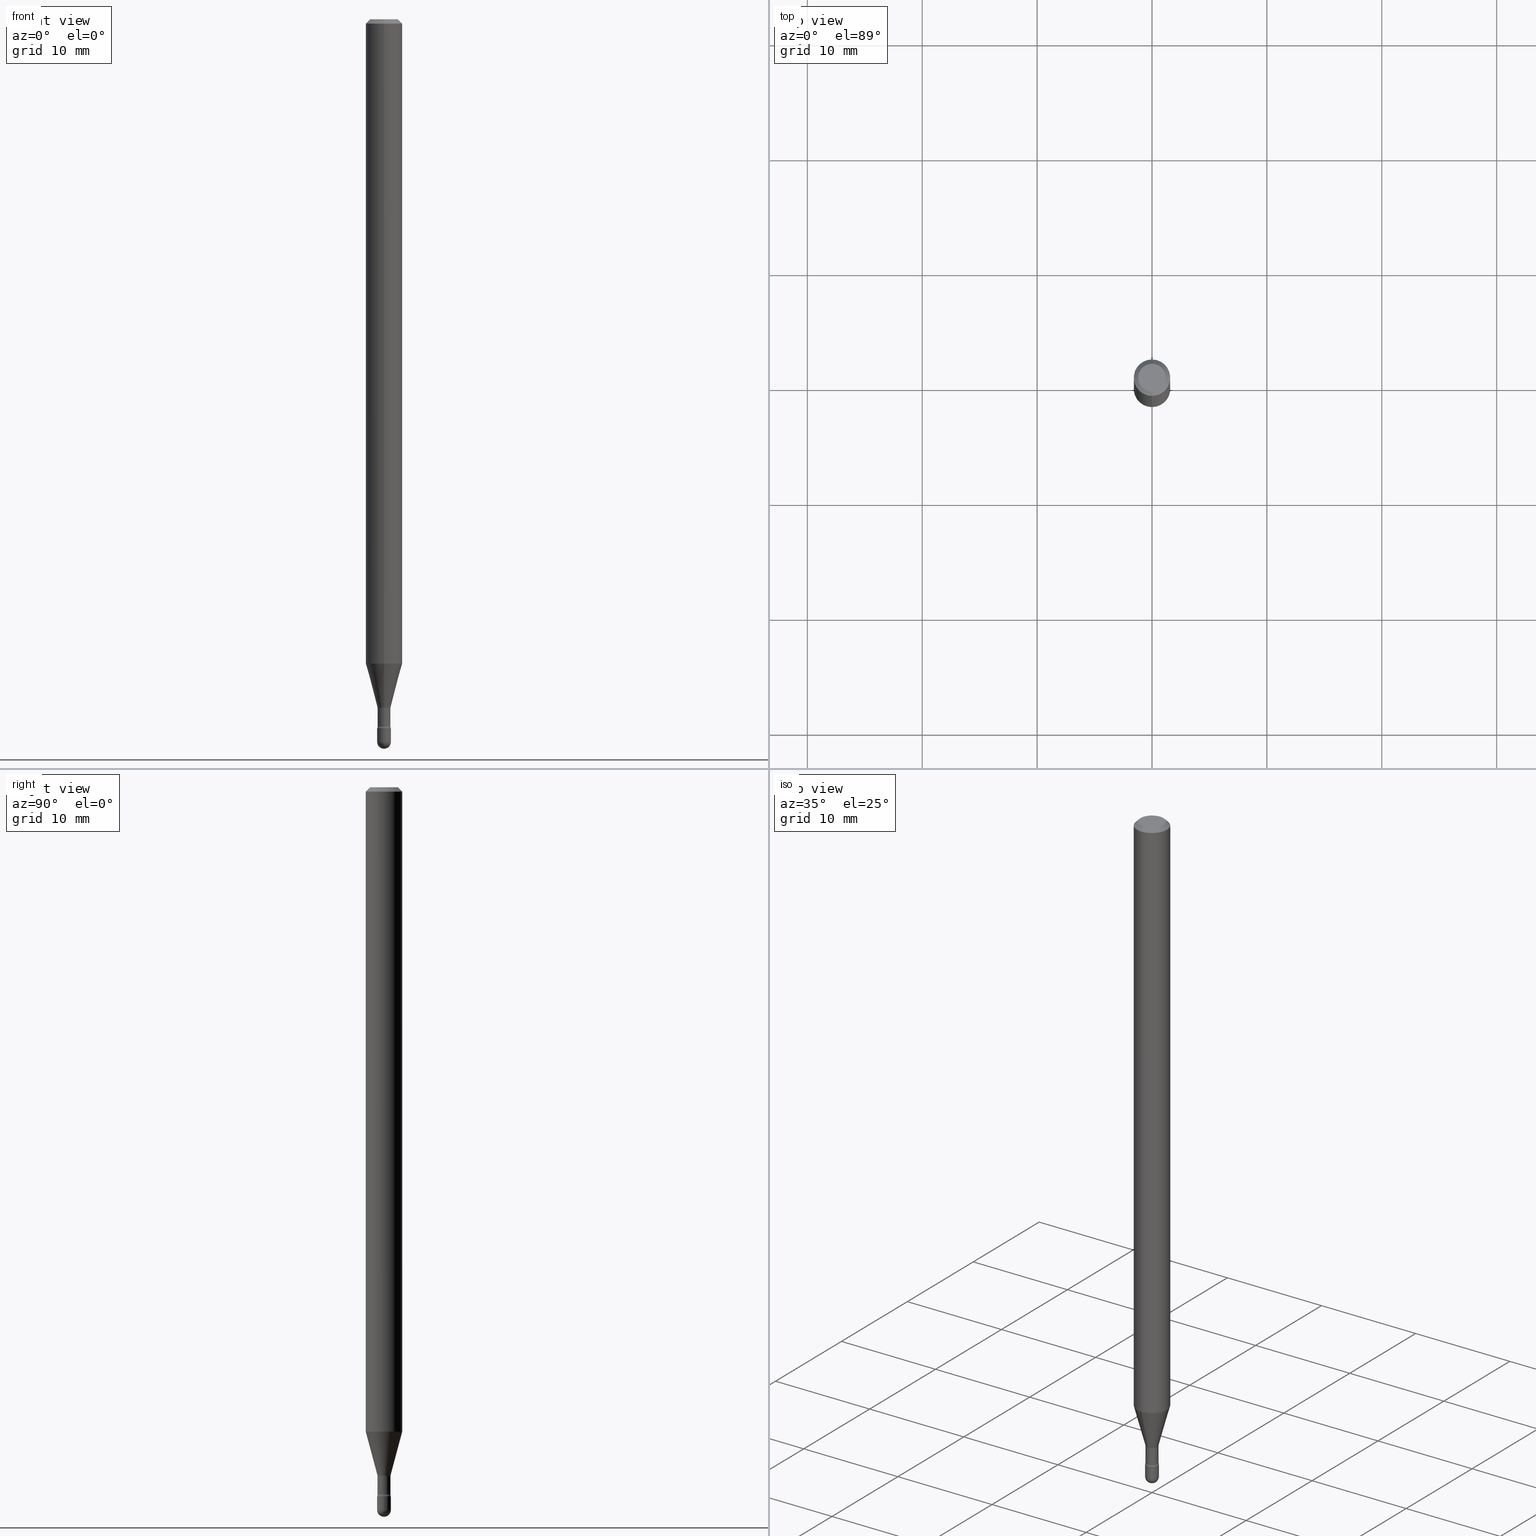
[diagram: canonical four-view strip — front | top / right | iso, engineering-drawing reading convention]
A machine part, canonical four-view strip (front | top / right | iso — engineering-drawing reading convention). The complete STEP part file that produces these views, byte-faithful:
ISO-10303-21;
HEADER;
FILE_DESCRIPTION (( 'STEP AP203' ),
    '1' );
FILE_NAME ('03814.STEP',
    '2024-04-09T20:34:34',
    ( '' ),
    ( '' ),
    'SwSTEP 2.0',
    'SolidWorks 2023',
    '' );
FILE_SCHEMA (( 'CONFIG_CONTROL_DESIGN' ));
ENDSEC;

DATA;
#1 = CARTESIAN_POINT ( 'NONE',  ( 3.668188384144842719E-31, -5.237243238698828652E-17, -0.01500000000000008271 ) ) ;
#2 = ORIENTED_EDGE ( 'NONE', *, *, #252, .F. ) ;
#3 = ORIENTED_EDGE ( 'NONE', *, *, #169, .T. ) ;
#4 = DIRECTION ( 'NONE',  ( -2.445458922763215307E-29, 3.491495492465866441E-15, 1.000000000000000000 ) ) ;
#5 = CIRCLE ( 'NONE', #216, 0.06250000000000000000 ) ;
#6 = EDGE_LOOP ( 'NONE', ( #541, #23, #12, #140 ) ) ;
#7 = CIRCLE ( 'NONE', #28, 0.02210000000000000159 ) ;
#8 = LINE ( 'NONE', #402, #455 ) ;
#9 = DIRECTION ( 'NONE',  ( 1.000000000000000000, -6.982962677686227268E-15, 0.000000000000000000 ) ) ;
#10 = LINE ( 'NONE', #356, #283 ) ;
#11 = DIRECTION ( 'NONE',  ( 2.445458922763215307E-29, -3.491495492465866441E-15, -1.000000000000000000 ) ) ;
#12 = ORIENTED_EDGE ( 'NONE', *, *, #491, .F. ) ;
#13 = CARTESIAN_POINT ( 'NONE',  ( 5.400123890116396966E-29, -7.710008148406855528E-15, -2.208225147374217823 ) ) ;
#14 = DIRECTION ( 'NONE',  ( -6.982962677686265922E-15, -1.000000000000000000, 0.000000000000000000 ) ) ;
#15 = ORIENTED_EDGE ( 'NONE', *, *, #129, .T. ) ;
#16 = EDGE_CURVE ( 'NONE', #460, #523, #559, .T. ) ;
#17 = PLANE ( 'NONE',  #522 ) ;
#18 = VECTOR ( 'NONE', #365, 39.37007874015748143 ) ;
#19 = FACE_OUTER_BOUND ( 'NONE', #482, .T. ) ;
#20 = ORIENTED_EDGE ( 'NONE', *, *, #16, .F. ) ;
#21 = EDGE_LOOP ( 'NONE', ( #24, #143, #464, #63 ) ) ;
#22 = DIRECTION ( 'NONE',  ( -2.445468806185136877E-29, 3.491481338843145188E-15, 1.000000000000000000 ) ) ;
#23 = ORIENTED_EDGE ( 'NONE', *, *, #141, .T. ) ;
#24 = ORIENTED_EDGE ( 'NONE', *, *, #322, .F. ) ;
#25 = PLANE ( 'NONE',  #121 ) ;
#26 = CARTESIAN_POINT ( 'NONE',  ( -1.543234751768087274E-16, -0.02210000000000824499, -2.360974787463811175 ) ) ;
#27 = VERTEX_POINT ( 'NONE', #191 ) ;
#28 = AXIS2_PLACEMENT_3D ( 'NONE', #325, #328, #274 ) ;
#29 = VERTEX_POINT ( 'NONE', #152 ) ;
#30 = CIRCLE ( 'NONE', #342, 0.02349999999999995148 ) ;
#31 = AXIS2_PLACEMENT_3D ( 'NONE', #411, #187, #109 ) ;
#32 = MANIFOLD_SOLID_BREP ( 'Body-Move/Copy2[2]', #535 ) ;
#33 = PERSON_AND_ORGANIZATION_ROLE ( 'design_owner' ) ;
#34 = ORIENTED_EDGE ( 'NONE', *, *, #141, .F. ) ;
#35 = DIRECTION ( 'NONE',  ( -7.105427357601001070E-15, -1.000000000000000000, 0.000000000000000000 ) ) ;
#36 = CALENDAR_DATE ( 2024, 9, 4 ) ;
#37 = DIRECTION ( 'NONE',  ( -2.445458922763215307E-29, 3.491495492465866441E-15, 1.000000000000000000 ) ) ;
#38 = EDGE_LOOP ( 'NONE', ( #458, #389, #506, #377, #231 ) ) ;
#39 = EDGE_CURVE ( 'NONE', #368, #417, #521, .T. ) ;
#40 = CALENDAR_DATE ( 2024, 9, 4 ) ;
#41 = AXIS2_PLACEMENT_3D ( 'NONE', #208, #51, #437 ) ;
#42 = DATE_AND_TIME ( #36, #330 ) ;
#43 = PRODUCT_DEFINITION_SHAPE ( 'NONE', 'NONE',  #384 ) ;
#44 = VECTOR ( 'NONE', #415, 39.37007874015748143 ) ;
#45 = COORDINATED_UNIVERSAL_TIME_OFFSET ( 5, 0, .BEHIND. ) ;
#46 = PRODUCT_RELATED_PRODUCT_CATEGORY ( 'detail', '', ( #202 ) ) ;
#47 = EDGE_CURVE ( 'NONE', #110, #195, #242, .T. ) ;
#48 = EDGE_CURVE ( 'NONE', #405, #503, #5, .T. ) ;
#49 = FACE_OUTER_BOUND ( 'NONE', #185, .T. ) ;
#50 = CIRCLE ( 'NONE', #218, 0.02350000000000000352 ) ;
#51 = DIRECTION ( 'NONE',  ( -2.445458922763215307E-29, 3.491495492465866441E-15, 1.000000000000000000 ) ) ;
#52 = ORIENTED_EDGE ( 'NONE', *, *, #48, .F. ) ;
#53 = ORIENTED_EDGE ( 'NONE', *, *, #226, .T. ) ;
#54 = DIRECTION ( 'NONE',  ( -2.445468806185136597E-29, 3.491481338843145583E-15, 1.000000000000000000 ) ) ;
#55 = DIRECTION ( 'NONE',  ( -2.445458922763215307E-29, 3.491495492465866441E-15, 1.000000000000000000 ) ) ;
#56 = CARTESIAN_POINT ( 'NONE',  ( -1.169113584055446105E-44, 1.669184350826100908E-30, 4.780733988912460139E-16 ) ) ;
#57 = LINE ( 'NONE', #96, #18 ) ;
#58 = EDGE_CURVE ( 'NONE', #188, #414, #547, .T. ) ;
#59 = EDGE_LOOP ( 'NONE', ( #128, #367 ) ) ;
#60 = EDGE_CURVE ( 'NONE', #414, #188, #372, .T. ) ;
#61 = DIRECTION ( 'NONE',  ( -2.445458922763215307E-29, 3.491495492465866441E-15, 1.000000000000000000 ) ) ;
#62 = LINE ( 'NONE', #313, #201 ) ;
#63 = ORIENTED_EDGE ( 'NONE', *, *, #518, .F. ) ;
#64 = AXIS2_PLACEMENT_3D ( 'NONE', #361, #442, #138 ) ;
#65 = CARTESIAN_POINT ( 'NONE',  ( 1.640996229256876491E-16, 0.02349999999999132991, -2.476500000000000590 ) ) ;
#66 = CIRCLE ( 'NONE', #203, 0.01500000000000002373 ) ;
#67 = CARTESIAN_POINT ( 'NONE',  ( -0.02350000000000000352, 1.669775429036235687E-16, -1.155949746209903035E-30 ) ) ;
#68 = EDGE_LOOP ( 'NONE', ( #327, #194, #370, #153 ) ) ;
#69 = ADVANCED_FACE ( 'NONE', ( #340 ), #299, .T. ) ;
#70 = FACE_OUTER_BOUND ( 'NONE', #145, .T. ) ;
#71 = DIRECTION ( 'NONE',  ( 7.105427357600997914E-15, 1.000000000000000000, 0.000000000000000000 ) ) ;
#72 = DIRECTION ( 'NONE',  ( 2.445458922763215307E-29, -3.491495492465866047E-15, -1.000000000000000000 ) ) ;
#73 = EDGE_LOOP ( 'NONE', ( #278, #112, #409, #479 ) ) ;
#74 = FACE_OUTER_BOUND ( 'NONE', #38, .T. ) ;
#75 = AXIS2_PLACEMENT_3D ( 'NONE', #117, #82, #162 ) ;
#76 = COORDINATED_UNIVERSAL_TIME_OFFSET ( 5, 0, .BEHIND. ) ;
#77 = DIRECTION ( 'NONE',  ( -6.982962677686266711E-15, -1.000000000000000000, 3.491495492465867230E-15 ) ) ;
#78 = DIRECTION ( 'NONE',  ( 1.000000000000000000, -6.982962677686265922E-15, 4.876176775795935793E-29 ) ) ;
#79 = ADVANCED_FACE ( 'NONE', ( #429 ), #564, .F. ) ;
#80 = VECTOR ( 'NONE', #528, 39.37007874015748143 ) ;
#81 = PERSON_AND_ORGANIZATION_ROLE ( 'creator' ) ;
#82 = DIRECTION ( 'NONE',  ( -2.445458922763215307E-29, 3.491495492465866441E-15, 1.000000000000000000 ) ) ;
#83 = AXIS2_PLACEMENT_3D ( 'NONE', #440, #351, #84 ) ;
#84 = DIRECTION ( 'NONE',  ( -6.982962677686265922E-15, -1.000000000000000000, 3.491495492465867230E-15 ) ) ;
#85 = EDGE_LOOP ( 'NONE', ( #438, #183, #148, #264 ) ) ;
#86 = ADVANCED_FACE ( 'NONE', ( #509 ), #122, .T. ) ;
#87 = ORIENTED_EDGE ( 'NONE', *, *, #175, .F. ) ;
#88 = ORIENTED_EDGE ( 'NONE', *, *, #494, .F. ) ;
#89 = FACE_OUTER_BOUND ( 'NONE', #6, .T. ) ;
#90 = FACE_OUTER_BOUND ( 'NONE', #498, .T. ) ;
#91 = EDGE_CURVE ( 'NONE', #413, #165, #156, .T. ) ;
#92 = CARTESIAN_POINT ( 'NONE',  ( 6.056203498517492154E-29, -8.646653535645053486E-15, -2.476500000000000590 ) ) ;
#93 = FACE_OUTER_BOUND ( 'NONE', #59, .T. ) ;
#94 = CARTESIAN_POINT ( 'NONE',  ( 6.056203498517492154E-29, -8.646653535645053486E-15, -2.476500000000000590 ) ) ;
#95 = VERTEX_POINT ( 'NONE', #259 ) ;
#96 = CARTESIAN_POINT ( 'NONE',  ( 1.606616180941393285E-16, 0.02261111260565575043, -2.357092501787273253 ) ) ;
#97 = CARTESIAN_POINT ( 'NONE',  ( -1.543234751768071250E-16, -0.02210000000000844275, -2.422672283192177645 ) ) ;
#98 = ORIENTED_EDGE ( 'NONE', *, *, #426, .F. ) ;
#99 = CARTESIAN_POINT ( 'NONE',  ( 5.764172890273956731E-29, -8.229777845315356399E-15, -2.357092501787273253 ) ) ;
#100 = LINE ( 'NONE', #67, #549 ) ;
#101 = ORIENTED_EDGE ( 'NONE', *, *, #91, .T. ) ;
#102 = EDGE_CURVE ( 'NONE', #417, #95, #329, .T. ) ;
#103 = CIRCLE ( 'NONE', #394, 0.02349999999999995148 ) ;
#104 = ORIENTED_EDGE ( 'NONE', *, *, #169, .F. ) ;
#105 = EDGE_CURVE ( 'NONE', #29, #331, #206, .T. ) ;
#106 = SPHERICAL_SURFACE ( 'NONE', #474, 0.02349999999999995148 ) ;
#107 = ORIENTED_EDGE ( 'NONE', *, *, #115, .T. ) ;
#108 = EDGE_LOOP ( 'NONE', ( #316, #171, #212, #333 ) ) ;
#109 = DIRECTION ( 'NONE',  ( -6.982962677686265922E-15, -1.000000000000000000, 3.491495492465864074E-15 ) ) ;
#110 = VERTEX_POINT ( 'NONE', #484 ) ;
#111 =( CONVERSION_BASED_UNIT ( 'INCH', #463 ) LENGTH_UNIT ( ) NAMED_UNIT ( #420 ) );
#112 = ORIENTED_EDGE ( 'NONE', *, *, #252, .T. ) ;
#113 = AXIS2_PLACEMENT_3D ( 'NONE', #359, #495, #173 ) ;
#114 = VECTOR ( 'NONE', #404, 39.37007874015748143 ) ;
#115 = EDGE_CURVE ( 'NONE', #27, #293, #565, .T. ) ;
#116 = APPROVAL_STATUS ( 'not_yet_approved' ) ;
#117 = CARTESIAN_POINT ( 'NONE',  ( 5.773690194932333551E-29, -8.243299411909058150E-15, -2.360974787463811175 ) ) ;
#118 = SHAPE_DEFINITION_REPRESENTATION ( #43, #273 ) ;
#119 = COORDINATED_UNIVERSAL_TIME_OFFSET ( 5, 0, .BEHIND. ) ;
#120 = DIRECTION ( 'NONE',  ( -6.982962677686265922E-15, -1.000000000000000000, 4.370956789862821150E-15 ) ) ;
#121 = AXIS2_PLACEMENT_3D ( 'NONE', #407, #72, #241 ) ;
#122 = CYLINDRICAL_SURFACE ( 'NONE', #446, 0.02350000000000000352 ) ;
#123 = EDGE_CURVE ( 'NONE', #460, #29, #306, .T. ) ;
#124 = ADVANCED_FACE ( 'NONE', ( #89 ), #441, .T. ) ;
#125 = CC_DESIGN_APPROVAL ( #504, ( #387 ) ) ;
#126 = ORIENTED_EDGE ( 'NONE', *, *, #412, .F. ) ;
#127 = CARTESIAN_POINT ( 'NONE',  ( -0.02350000000000000352, -8.396753310943903641E-15, -2.429000000000000270 ) ) ;
#128 = ORIENTED_EDGE ( 'NONE', *, *, #47, .T. ) ;
#129 = EDGE_CURVE ( 'NONE', #165, #405, #8, .T. ) ;
#130 = DIRECTION ( 'NONE',  ( -2.445468806185136597E-29, 3.491481338843145583E-15, 1.000000000000000000 ) ) ;
#131 = DIRECTION ( 'NONE',  ( -2.445458922763215307E-29, 3.491495492465866047E-15, 1.000000000000000000 ) ) ;
#132 = DIRECTION ( 'NONE',  ( -2.445458922763215307E-29, 3.491495492465866441E-15, 1.000000000000000000 ) ) ;
#133 = DIRECTION ( 'NONE',  ( -2.445468806185136597E-29, 3.491481338843145583E-15, 1.000000000000000000 ) ) ;
#134 = AXIS2_PLACEMENT_3D ( 'NONE', #526, #279, #453 ) ;
#135 = DIRECTION ( 'NONE',  ( -6.982962677686265922E-15, -1.000000000000000000, 3.483106191921935554E-15 ) ) ;
#136 = CARTESIAN_POINT ( 'NONE',  ( 5.764172890273956731E-29, -8.229777845315356399E-15, -2.357092501787273253 ) ) ;
#137 = ORIENTED_EDGE ( 'NONE', *, *, #129, .F. ) ;
#138 = DIRECTION ( 'NONE',  ( 6.982962677686265922E-15, 1.000000000000000000, -3.483106191921935554E-15 ) ) ;
#139 = DIRECTION ( 'NONE',  ( 6.982962677686265922E-15, 1.000000000000000000, 0.000000000000000000 ) ) ;
#140 = ORIENTED_EDGE ( 'NONE', *, *, #552, .F. ) ;
#141 = EDGE_CURVE ( 'NONE', #368, #523, #355, .T. ) ;
#142 = DIRECTION ( 'NONE',  ( -6.982962677686265922E-15, -1.000000000000000000, 3.491495492465866047E-15 ) ) ;
#143 = ORIENTED_EDGE ( 'NONE', *, *, #398, .T. ) ;
#144 = DIRECTION ( 'NONE',  ( 1.000000000000000000, -6.982962677686227268E-15, 0.000000000000000000 ) ) ;
#145 = EDGE_LOOP ( 'NONE', ( #34, #232, #502, #126 ) ) ;
#146 = AXIS2_PLACEMENT_3D ( 'NONE', #338, #257, #395 ) ;
#147 = AXIS2_PLACEMENT_3D ( 'NONE', #99, #403, #14 ) ;
#148 = ORIENTED_EDGE ( 'NONE', *, *, #476, .F. ) ;
#149 = DIRECTION ( 'NONE',  ( -2.445458922763215307E-29, 3.491495492465866441E-15, 1.000000000000000000 ) ) ;
#150 = ORIENTED_EDGE ( 'NONE', *, *, #60, .T. ) ;
#151 = EDGE_CURVE ( 'NONE', #165, #413, #386, .T. ) ;
#152 = CARTESIAN_POINT ( 'NONE',  ( -1.578925554262553659E-16, -0.02261111260567220949, -2.357092501787273253 ) ) ;
#153 = ORIENTED_EDGE ( 'NONE', *, *, #105, .F. ) ;
#154 = DIRECTION ( 'NONE',  ( -2.445458922763215307E-29, 3.491495492465866441E-15, 1.000000000000000000 ) ) ;
#155 = APPLICATION_PROTOCOL_DEFINITION ( 'international standard', 'config_control_design', 1994, #281 ) ;
#156 = CIRCLE ( 'NONE', #179, 0.06250000000000000000 ) ;
#157 = PERSON_AND_ORGANIZATION_ROLE ( 'classification_officer' ) ;
#158 = PERSON_AND_ORGANIZATION_ROLE ( 'creator' ) ;
#159 = DIRECTION ( 'NONE',  ( -2.445468806185136597E-29, 3.491481338843145583E-15, 1.000000000000000000 ) ) ;
#160 = APPROVAL_DATE_TIME ( #510, #504 ) ;
#161 = AXIS2_PLACEMENT_3D ( 'NONE', #239, #133, #334 ) ;
#162 = DIRECTION ( 'NONE',  ( -6.982962677686265922E-15, -1.000000000000000000, 3.491495492465866047E-15 ) ) ;
#163 = CIRCLE ( 'NONE', #456, 0.02210000000000000159 ) ;
#164 = CIRCLE ( 'NONE', #514, 0.02350000000000000699 ) ;
#165 = VERTEX_POINT ( 'NONE', #265 ) ;
#166 = ORIENTED_EDGE ( 'NONE', *, *, #422, .T. ) ;
#167 = AXIS2_PLACEMENT_3D ( 'NONE', #410, #186, #224 ) ;
#168 = VECTOR ( 'NONE', #324, 39.37007874015748143 ) ;
#169 = EDGE_CURVE ( 'NONE', #413, #503, #62, .T. ) ;
#170 = FACE_OUTER_BOUND ( 'NONE', #210, .T. ) ;
#171 = ORIENTED_EDGE ( 'NONE', *, *, #175, .T. ) ;
#172 = DIRECTION ( 'NONE',  ( -6.982962677686265922E-15, -1.000000000000000000, 0.000000000000000000 ) ) ;
#173 = DIRECTION ( 'NONE',  ( -6.982962677686265922E-15, -1.000000000000000000, 3.483106191921935554E-15 ) ) ;
#174 = DIRECTION ( 'NONE',  ( -6.982962677686265922E-15, -1.000000000000000000, 0.000000000000000000 ) ) ;
#175 = EDGE_CURVE ( 'NONE', #460, #165, #57, .T. ) ;
#176 = CARTESIAN_POINT ( 'NONE',  ( 5.773666860422362365E-29, -8.243332828255453894E-15, -2.360974787463811175 ) ) ;
#177 = DIRECTION ( 'NONE',  ( -2.445458922763215307E-29, 3.491495492465866441E-15, 1.000000000000000000 ) ) ;
#178 = CARTESIAN_POINT ( 'NONE',  ( 0.02350000000000000352, -1.640996229256272766E-16, 1.145901542312045115E-30 ) ) ;
#179 = AXIS2_PLACEMENT_3D ( 'NONE', #310, #211, #120 ) ;
#180 = DIRECTION ( 'NONE',  ( -2.445458922763215307E-29, 3.491495492465866047E-15, 1.000000000000000000 ) ) ;
#181 = CARTESIAN_POINT ( 'NONE',  ( -4.364351673553376817E-16, -0.06250000000000772993, -2.208225147374217379 ) ) ;
#182 = EDGE_CURVE ( 'NONE', #195, #110, #468, .T. ) ;
#183 = ORIENTED_EDGE ( 'NONE', *, *, #322, .T. ) ;
#184 = DIRECTION ( 'NONE',  ( 1.000000000000000000, -6.982962677686227268E-15, 0.000000000000000000 ) ) ;
#185 = EDGE_LOOP ( 'NONE', ( #408, #166, #538, #450 ) ) ;
#186 = DIRECTION ( 'NONE',  ( -2.445468806185136597E-29, 3.491481338843145583E-15, 1.000000000000000000 ) ) ;
#187 = DIRECTION ( 'NONE',  ( -2.445458922763215307E-29, 3.491495492465866441E-15, 1.000000000000000000 ) ) ;
#188 = VERTEX_POINT ( 'NONE', #532 ) ;
#189 = CARTESIAN_POINT ( 'NONE',  ( -1.543234751768664129E-16, -0.02209999999999999118, 5.552354492747416526E-16 ) ) ;
#190 = LOCAL_TIME ( 16, 34, 34.00000000000000000, #119 ) ;
#191 = CARTESIAN_POINT ( 'NONE',  ( 0.02350000000000000699, -8.727830476773153796E-15, -2.476500000000000590 ) ) ;
#192 = AXIS2_PLACEMENT_3D ( 'NONE', #556, #154, #77 ) ;
#193 = AXIS2_PLACEMENT_3D ( 'NONE', #214, #445, #172 ) ;
#194 = ORIENTED_EDGE ( 'NONE', *, *, #16, .T. ) ;
#195 = VERTEX_POINT ( 'NONE', #127 ) ;
#196 = EDGE_CURVE ( 'NONE', #293, #198, #431, .T. ) ;
#197 = APPROVAL_ROLE ( '' ) ;
#198 = VERTEX_POINT ( 'NONE', #276 ) ;
#199 = APPROVAL_DATE_TIME ( #507, #358 ) ;
#200 = MANIFOLD_SOLID_BREP ( 'Body-Move/Copy2[1]', #391 ) ;
#201 = VECTOR ( 'NONE', #131, 39.37007874015748143 ) ;
#202 = PRODUCT ( '03814', '03814', '', ( #383 ) ) ;
#203 = AXIS2_PLACEMENT_3D ( 'NONE', #366, #277, #539 ) ;
#204 =( NAMED_UNIT ( * ) PLANE_ANGLE_UNIT ( ) SI_UNIT ( $, .RADIAN. ) );
#205 = ADVANCED_FACE ( 'NONE', ( #406 ), #513, .T. ) ;
#206 = CIRCLE ( 'NONE', #243, 0.01500000000000002373 ) ;
#207 = CIRCLE ( 'NONE', #161, 0.02350000000000000699 ) ;
#208 = CARTESIAN_POINT ( 'NONE',  ( 5.924569496155793274E-29, -8.458715066898003695E-15, -2.422672283192177645 ) ) ;
#209 = ADVANCED_FACE ( 'NONE', ( #90 ), #17, .F. ) ;
#210 = EDGE_LOOP ( 'NONE', ( #87, #545, #519, #240 ) ) ;
#211 = DIRECTION ( 'NONE',  ( -2.445458922763215307E-29, 3.491495492465866441E-15, 1.000000000000000000 ) ) ;
#212 = ORIENTED_EDGE ( 'NONE', *, *, #91, .F. ) ;
#213 = CARTESIAN_POINT ( 'NONE',  ( 5.764172890273956731E-29, -8.229777845315356399E-15, -2.357092501787273253 ) ) ;
#214 = CARTESIAN_POINT ( 'NONE',  ( 5.764172890273956731E-29, -8.229777845315356399E-15, -2.357092501787273253 ) ) ;
#215 = CARTESIAN_POINT ( 'NONE',  ( 6.056203498517492154E-29, -8.646653535645053486E-15, -2.476500000000000590 ) ) ;
#216 = AXIS2_PLACEMENT_3D ( 'NONE', #542, #177, #135 ) ;
#217 = AXIS2_PLACEMENT_3D ( 'NONE', #444, #55, #477 ) ;
#218 = AXIS2_PLACEMENT_3D ( 'NONE', #228, #369, #457 ) ;
#219 = FACE_OUTER_BOUND ( 'NONE', #235, .T. ) ;
#220 = DIRECTION ( 'NONE',  ( -1.000000000000000000, 6.982962677686265922E-15, -4.883557194083112340E-29 ) ) ;
#221 = EDGE_LOOP ( 'NONE', ( #285, #371, #540, #323, #107 ) ) ;
#222 = CARTESIAN_POINT ( 'NONE',  ( 1.570299446029820538E-16, 0.02209999999999999118, 4.009113485077504246E-16 ) ) ;
#223 = DIRECTION ( 'NONE',  ( 1.000000000000000000, -6.982962677686265922E-15, 4.876176775795935793E-29 ) ) ;
#224 = DIRECTION ( 'NONE',  ( 1.000000000000000000, -6.982962677686269866E-15, 0.000000000000000000 ) ) ;
#225 = DIRECTION ( 'NONE',  ( -6.982962677686265922E-15, -1.000000000000000000, 0.000000000000000000 ) ) ;
#226 = EDGE_CURVE ( 'NONE', #188, #405, #393, .T. ) ;
#227 = CARTESIAN_POINT ( 'NONE',  ( 5.940043730223697314E-29, -8.480808172050001970E-15, -2.429000000000000270 ) ) ;
#228 = CARTESIAN_POINT ( 'NONE',  ( 5.940019723391850041E-29, -8.480842551199589524E-15, -2.429000000000000270 ) ) ;
#229 = AXIS2_PLACEMENT_3D ( 'NONE', #13, #132, #480 ) ;
#230 = AXIS2_PLACEMENT_3D ( 'NONE', #517, #255, #433 ) ;
#231 = ORIENTED_EDGE ( 'NONE', *, *, #182, .F. ) ;
#232 = ORIENTED_EDGE ( 'NONE', *, *, #39, .T. ) ;
#233 = UNCERTAINTY_MEASURE_WITH_UNIT (LENGTH_MEASURE( 1.000000000000000082E-05 ), #111, 'distance_accuracy_value', 'NONE');
#234 = CARTESIAN_POINT ( 'NONE',  ( 5.924545551863441323E-29, -8.458749356487475884E-15, -2.422672283192177645 ) ) ;
#235 = EDGE_LOOP ( 'NONE', ( #2, #297, #53, #336 ) ) ;
#236 = ORIENTED_EDGE ( 'NONE', *, *, #292, .T. ) ;
#237 = CC_DESIGN_PERSON_AND_ORGANIZATION_ASSIGNMENT ( #427, #158, ( #384 ) ) ;
#238 = EDGE_CURVE ( 'NONE', #503, #405, #263, .T. ) ;
#239 = CARTESIAN_POINT ( 'NONE',  ( 6.056203498517492154E-29, -8.646653535645053486E-15, -2.476500000000000590 ) ) ;
#240 = ORIENTED_EDGE ( 'NONE', *, *, #151, .F. ) ;
#241 = DIRECTION ( 'NONE',  ( 6.982962677686265922E-15, 1.000000000000000000, -3.491495492465866047E-15 ) ) ;
#242 = CIRCLE ( 'NONE', #167, 0.02350000000000000352 ) ;
#243 = AXIS2_PLACEMENT_3D ( 'NONE', #262, #220, #317 ) ;
#244 = LOCAL_TIME ( 16, 34, 34.00000000000000000, #376 ) ;
#245 = CALENDAR_DATE ( 2024, 9, 4 ) ;
#246 = PERSON ( 'UNSPECIFIED', 'UNSPECIFIED', 'UNSPECIFIED', ('UNSPECIFIED'), ('UNSPECIFIED'), ('UNSPECIFIED') ) ;
#247 = EDGE_LOOP ( 'NONE', ( #137, #364, #3, #52 ) ) ;
#248 = CARTESIAN_POINT ( 'NONE',  ( 6.056203498517491033E-29, -8.646653535645050331E-15, -2.476500000000000146 ) ) ;
#249 = APPROVAL_ROLE ( '' ) ;
#250 = FACE_OUTER_BOUND ( 'NONE', #68, .T. ) ;
#251 = APPLICATION_CONTEXT ( 'configuration controlled 3d designs of mechanical parts and assemblies' ) ;
#252 = EDGE_CURVE ( 'NONE', #414, #503, #10, .T. ) ;
#253 = APPROVAL_ROLE ( '' ) ;
#254 = AXIS2_PLACEMENT_3D ( 'NONE', #213, #4, #174 ) ;
#255 = DIRECTION ( 'NONE',  ( -1.000000000000000000, 6.982962677686265922E-15, -4.883557194083112340E-29 ) ) ;
#256 = CC_DESIGN_SECURITY_CLASSIFICATION ( #387, ( #511 ) ) ;
#257 = DIRECTION ( 'NONE',  ( -2.445458922763215307E-29, 3.491495492465866441E-15, 1.000000000000000000 ) ) ;
#258 = APPROVAL_DATE_TIME ( #557, #396 ) ;
#259 = CARTESIAN_POINT ( 'NONE',  ( -1.640996229255680380E-16, -0.02350000000000850367, -2.429000000000000270 ) ) ;
#260 = DATE_TIME_ROLE ( 'classification_date' ) ;
#261 = ADVANCED_FACE ( 'NONE', ( #93 ), #272, .T. ) ;
#262 = CARTESIAN_POINT ( 'NONE',  ( -2.590679153421027626E-16, -0.03710000000000824444, -2.360974787463811175 ) ) ;
#263 = CIRCLE ( 'NONE', #113, 0.06250000000000000000 ) ;
#264 = ORIENTED_EDGE ( 'NONE', *, *, #196, .F. ) ;
#265 = CARTESIAN_POINT ( 'NONE',  ( 4.440892098501163573E-16, 0.06249999999999226313, -2.208225147374217823 ) ) ;
#266 = CYLINDRICAL_SURFACE ( 'NONE', #217, 0.06250000000000000000 ) ;
#267 = ORIENTED_EDGE ( 'NONE', *, *, #292, .F. ) ;
#268 = APPROVAL_PERSON_ORGANIZATION ( #473, #358, #253 ) ;
#269 = AXIS2_PLACEMENT_3D ( 'NONE', #248, #558, #343 ) ;
#270 = AXIS2_PLACEMENT_3D ( 'NONE', #312, #448, #223 ) ;
#271 = DIRECTION ( 'NONE',  ( -2.445458922763215307E-29, 3.491495492465866441E-15, 1.000000000000000000 ) ) ;
#272 = PLANE ( 'NONE',  #270 ) ;
#273 = ADVANCED_BREP_SHAPE_REPRESENTATION ( '03814', ( #200, #32, #350 ), #375 ) ;
#274 = DIRECTION ( 'NONE',  ( -6.982962677686265922E-15, -1.000000000000000000, 0.000000000000000000 ) ) ;
#275 = EDGE_CURVE ( 'NONE', #29, #460, #499, .T. ) ;
#276 = CARTESIAN_POINT ( 'NONE',  ( -0.02350000000000000699, -8.396753310943903641E-15, -2.476500000000000590 ) ) ;
#277 = DIRECTION ( 'NONE',  ( 1.000000000000000000, -7.105427357601001070E-15, 4.926315681873970035E-29 ) ) ;
#278 = ORIENTED_EDGE ( 'NONE', *, *, #60, .F. ) ;
#279 = DIRECTION ( 'NONE',  ( -2.445458922763215307E-29, 3.491495492465866441E-15, 1.000000000000000000 ) ) ;
#280 = ORIENTED_EDGE ( 'NONE', *, *, #58, .T. ) ;
#281 = APPLICATION_CONTEXT ( 'configuration controlled 3d designs of mechanical parts and assemblies' ) ;
#282 = CARTESIAN_POINT ( 'NONE',  ( -4.364351673553912750E-16, -0.06250000000000005551, -0.01499999999999986587 ) ) ;
#283 = VECTOR ( 'NONE', #318, 39.37007874015748143 ) ;
#284 = LOCAL_TIME ( 16, 34, 34.00000000000000000, #380 ) ;
#285 = ORIENTED_EDGE ( 'NONE', *, *, #196, .T. ) ;
#286 = DIRECTION ( 'NONE',  ( -2.445458922763215307E-29, 3.491495492465866441E-15, 1.000000000000000000 ) ) ;
#287 = ORIENTED_EDGE ( 'NONE', *, *, #275, .F. ) ;
#288 = CC_DESIGN_PERSON_AND_ORGANIZATION_ASSIGNMENT ( #472, #157, ( #387 ) ) ;
#289 = CARTESIAN_POINT ( 'NONE',  ( 6.056203498517491033E-29, -8.646653535645050331E-15, -2.476500000000000146 ) ) ;
#290 = DIRECTION ( 'NONE',  ( 1.000000000000000000, -7.105427357601001070E-15, 4.926315681873970035E-29 ) ) ;
#291 = CYLINDRICAL_SURFACE ( 'NONE', #382, 0.02350000000000000352 ) ;
#292 = EDGE_CURVE ( 'NONE', #95, #555, #560, .T. ) ;
#293 = VERTEX_POINT ( 'NONE', #65 ) ;
#294 = DATE_AND_TIME ( #40, #244 ) ;
#295 = ORIENTED_EDGE ( 'NONE', *, *, #238, .F. ) ;
#296 = VECTOR ( 'NONE', #439, 39.37007874015748854 ) ;
#297 = ORIENTED_EDGE ( 'NONE', *, *, #58, .F. ) ;
#298 = AXIS2_PLACEMENT_3D ( 'NONE', #136, #61, #225 ) ;
#299 = SPHERICAL_SURFACE ( 'NONE', #269, 0.02349999999999995148 ) ;
#300 = PERSON_AND_ORGANIZATION ( #246, #362 ) ;
#301 = DIRECTION ( 'NONE',  ( -6.982962677686265922E-15, -1.000000000000000000, 3.491495492465866047E-15 ) ) ;
#302 = ADVANCED_FACE ( 'NONE', ( #424 ), #349, .F. ) ;
#303 = APPROVAL_STATUS ( 'not_yet_approved' ) ;
#304 = CALENDAR_DATE ( 2024, 9, 4 ) ;
#305 = AXIS2_PLACEMENT_3D ( 'NONE', #530, #314, #533 ) ;
#306 = CIRCLE ( 'NONE', #193, 0.02261111260566397996 ) ;
#307 = CC_DESIGN_PERSON_AND_ORGANIZATION_ASSIGNMENT ( #347, #33, ( #202 ) ) ;
#308 =( NAMED_UNIT ( * ) SI_UNIT ( $, .STERADIAN. ) SOLID_ANGLE_UNIT ( ) );
#309 = ADVANCED_FACE ( 'NONE', ( #250 ), #320, .F. ) ;
#310 = CARTESIAN_POINT ( 'NONE',  ( 5.400123890116396966E-29, -7.710008148406855528E-15, -2.208225147374217823 ) ) ;
#311 = ADVANCED_FACE ( 'NONE', ( #74 ), #291, .T. ) ;
#312 = CARTESIAN_POINT ( 'NONE',  ( 5.940043730223697314E-29, -8.480808172050001970E-15, -2.429000000000000270 ) ) ;
#313 = CARTESIAN_POINT ( 'NONE',  ( -4.364351673553916201E-16, -0.06250000000000000000, 6.962918671703627158E-16 ) ) ;
#314 = DIRECTION ( 'NONE',  ( -2.445458922763215307E-29, 3.491495492465866441E-15, 1.000000000000000000 ) ) ;
#315 = DIRECTION ( 'NONE',  ( 6.982962677686265922E-15, 1.000000000000000000, 0.000000000000000000 ) ) ;
#316 = ORIENTED_EDGE ( 'NONE', *, *, #275, .T. ) ;
#317 = DIRECTION ( 'NONE',  ( -6.982962677686266711E-15, -1.000000000000000000, 0.000000000000000000 ) ) ;
#318 = DIRECTION ( 'NONE',  ( -4.851104656540964275E-15, -0.7071067811865500152, -0.7071067811865450192 ) ) ;
#319 = CC_DESIGN_PERSON_AND_ORGANIZATION_ASSIGNMENT ( #475, #81, ( #511 ) ) ;
#320 = TOROIDAL_SURFACE ( 'NONE', #508, 0.03710000000000000103, 0.01500000000000002720 ) ;
#321 = DIRECTION ( 'NONE',  ( -2.445468806185136597E-29, 3.491481338843145583E-15, 1.000000000000000000 ) ) ;
#322 = EDGE_CURVE ( 'NONE', #326, #493, #30, .T. ) ;
#323 = ORIENTED_EDGE ( 'NONE', *, *, #492, .F. ) ;
#324 = DIRECTION ( 'NONE',  ( 4.937700262164548042E-15, 0.7071067811865451302, -0.7071067811865499042 ) ) ;
#325 = CARTESIAN_POINT ( 'NONE',  ( 5.773666860422362365E-29, -8.243332828255453894E-15, -2.360974787463811175 ) ) ;
#326 = VERTEX_POINT ( 'NONE', #418 ) ;
#327 = ORIENTED_EDGE ( 'NONE', *, *, #123, .F. ) ;
#328 = DIRECTION ( 'NONE',  ( -2.445458922763215307E-29, 3.491495492465866441E-15, 1.000000000000000000 ) ) ;
#329 = CIRCLE ( 'NONE', #230, 0.01500000000000002373 ) ;
#330 = LOCAL_TIME ( 16, 34, 34.00000000000000000, #45 ) ;
#331 = VERTEX_POINT ( 'NONE', #26 ) ;
#332 = EDGE_CURVE ( 'NONE', #29, #413, #341, .T. ) ;
#333 = ORIENTED_EDGE ( 'NONE', *, *, #332, .F. ) ;
#334 = DIRECTION ( 'NONE',  ( 1.000000000000000000, -6.982962677686227268E-15, 0.000000000000000000 ) ) ;
#335 = DIRECTION ( 'NONE',  ( -2.445468806185136597E-29, 3.491481338843145583E-15, 1.000000000000000000 ) ) ;
#336 = ORIENTED_EDGE ( 'NONE', *, *, #48, .T. ) ;
#337 = DIRECTION ( 'NONE',  ( 1.000000000000000000, 0.000000000000000000, 0.000000000000000000 ) ) ;
#338 = CARTESIAN_POINT ( 'NONE',  ( 5.924545551863441323E-29, -8.458749356487475884E-15, -2.422672283192177645 ) ) ;
#339 = DIRECTION ( 'NONE',  ( -1.000000000000000000, 7.105427357601001070E-15, -4.926315508542082329E-29 ) ) ;
#340 = FACE_OUTER_BOUND ( 'NONE', #21, .T. ) ;
#341 = LINE ( 'NONE', #512, #296 ) ;
#342 = AXIS2_PLACEMENT_3D ( 'NONE', #466, #339, #35 ) ;
#343 = DIRECTION ( 'NONE',  ( 6.982962677686265922E-15, 1.000000000000000000, 0.000000000000000000 ) ) ;
#344 = CALENDAR_DATE ( 2024, 9, 4 ) ;
#345 = DIRECTION ( 'NONE',  ( 0.000000000000000000, 0.000000000000000000, 1.000000000000000000 ) ) ;
#346 = ADVANCED_FACE ( 'NONE', ( #49 ), #548, .F. ) ;
#347 = PERSON_AND_ORGANIZATION ( #246, #362 ) ;
#348 = CC_DESIGN_APPROVAL ( #358, ( #511 ) ) ;
#349 = TOROIDAL_SURFACE ( 'NONE', #486, 0.03710000000000000797, 0.01500000000000002373 ) ;
#350 = AXIS2_PLACEMENT_3D ( 'NONE', #554, #345, #337 ) ;
#351 = DIRECTION ( 'NONE',  ( -2.445458922763215307E-29, 3.491495492465866441E-15, 1.000000000000000000 ) ) ;
#352 = FACE_OUTER_BOUND ( 'NONE', #551, .T. ) ;
#353 = ADVANCED_FACE ( 'NONE', ( #527 ), #266, .T. ) ;
#354 = CONICAL_SURFACE ( 'NONE', #374, 0.06250000000000000000, 0.7853981633974483900 ) ;
#355 = LINE ( 'NONE', #222, #80 ) ;
#356 = CARTESIAN_POINT ( 'NONE',  ( -4.287811248607203282E-16, -0.06250000000000005551, -0.01499999999999986587 ) ) ;
#357 = CARTESIAN_POINT ( 'NONE',  ( 6.056203498517491033E-29, -8.646653535645050331E-15, -2.476500000000000146 ) ) ;
#358 = APPROVAL ( #116, 'UNSPECIFIED' ) ;
#359 = CARTESIAN_POINT ( 'NONE',  ( 3.668188384144842719E-31, -5.237243238698828652E-17, -0.01500000000000008271 ) ) ;
#360 = DIRECTION ( 'NONE',  ( -2.445458922763215307E-29, 3.491495492465866441E-15, 1.000000000000000000 ) ) ;
#361 = CARTESIAN_POINT ( 'NONE',  ( 3.668188384144842719E-31, -5.237243238698828652E-17, -0.01500000000000008271 ) ) ;
#362 = ORGANIZATION ( 'UNSPECIFIED', 'UNSPECIFIED', '' ) ;
#363 = DIRECTION ( 'NONE',  ( -1.000000000000000000, 6.982962677686265922E-15, -4.883557194083111780E-29 ) ) ;
#364 = ORIENTED_EDGE ( 'NONE', *, *, #151, .T. ) ;
#365 = DIRECTION ( 'NONE',  ( 1.839019923739596371E-15, 0.2588190451025244032, 0.9659258262890673130 ) ) ;
#366 = CARTESIAN_POINT ( 'NONE',  ( 2.636113549670564395E-16, 0.03709999999999154946, -2.422672283192177645 ) ) ;
#367 = ORIENTED_EDGE ( 'NONE', *, *, #182, .T. ) ;
#368 = VERTEX_POINT ( 'NONE', #520 ) ;
#369 = DIRECTION ( 'NONE',  ( -2.445458922763215307E-29, 3.491495492465866441E-15, 1.000000000000000000 ) ) ;
#370 = ORIENTED_EDGE ( 'NONE', *, *, #412, .T. ) ;
#371 = ORIENTED_EDGE ( 'NONE', *, *, #465, .T. ) ;
#372 = CIRCLE ( 'NONE', #192, 0.04749999999999999362 ) ;
#373 = CARTESIAN_POINT ( 'NONE',  ( 1.669775429036830291E-16, 0.02349999999999153460, -2.429000000000000270 ) ) ;
#374 = AXIS2_PLACEMENT_3D ( 'NONE', #1, #11, #390 ) ;
#375 =( GEOMETRIC_REPRESENTATION_CONTEXT ( 3 ) GLOBAL_UNCERTAINTY_ASSIGNED_CONTEXT ( ( #233 ) ) GLOBAL_UNIT_ASSIGNED_CONTEXT ( ( #111, #204, #308 ) ) REPRESENTATION_CONTEXT ( 'NONE', 'WORKASPACE' ) );
#376 = COORDINATED_UNIVERSAL_TIME_OFFSET ( 5, 0, .BEHIND. ) ;
#377 = ORIENTED_EDGE ( 'NONE', *, *, #492, .T. ) ;
#378 = ADVANCED_FACE ( 'NONE', ( #219 ), #354, .T. ) ;
#379 = PERSON_AND_ORGANIZATION ( #246, #362 ) ;
#380 = COORDINATED_UNIVERSAL_TIME_OFFSET ( 5, 0, .BEHIND. ) ;
#381 = AXIS2_PLACEMENT_3D ( 'NONE', #497, #290, #71 ) ;
#382 = AXIS2_PLACEMENT_3D ( 'NONE', #461, #335, #505 ) ;
#383 = MECHANICAL_CONTEXT ( 'NONE', #251, 'mechanical' ) ;
#384 = PRODUCT_DEFINITION ( 'UNKNOWN', '', #511, #500 ) ;
#385 = ADVANCED_FACE ( 'NONE', ( #352 ), #397, .T. ) ;
#386 = CIRCLE ( 'NONE', #229, 0.06250000000000000000 ) ;
#387 = SECURITY_CLASSIFICATION ( '', '', #430 ) ;
#388 = ADVANCED_FACE ( 'NONE', ( #170 ), #421, .T. ) ;
#389 = ORIENTED_EDGE ( 'NONE', *, *, #476, .T. ) ;
#390 = DIRECTION ( 'NONE',  ( 6.982962677686265922E-15, 1.000000000000000000, -3.483106191921935554E-15 ) ) ;
#391 = CLOSED_SHELL ( 'NONE', ( #86, #399, #261, #69, #311 ) ) ;
#392 = DIRECTION ( 'NONE',  ( -6.982962677686265922E-15, -1.000000000000000000, 3.491495492465864074E-15 ) ) ;
#393 = LINE ( 'NONE', #489, #168 ) ;
#394 = AXIS2_PLACEMENT_3D ( 'NONE', #357, #531, #315 ) ;
#395 = DIRECTION ( 'NONE',  ( -6.982962677686265922E-15, -1.000000000000000000, 0.000000000000000000 ) ) ;
#396 = APPROVAL ( #303, 'UNSPECIFIED' ) ;
#397 = CYLINDRICAL_SURFACE ( 'NONE', #83, 0.06250000000000000000 ) ;
#398 = EDGE_CURVE ( 'NONE', #326, #293, #103, .T. ) ;
#399 = ADVANCED_FACE ( 'NONE', ( #516 ), #106, .T. ) ;
#400 = ADVANCED_FACE ( 'NONE', ( #19 ), #25, .F. ) ;
#401 = DIRECTION ( 'NONE',  ( -6.982962677686265922E-15, -1.000000000000000000, 3.491495492465866047E-15 ) ) ;
#402 = CARTESIAN_POINT ( 'NONE',  ( 4.440892098500625669E-16, 0.06250000000000000000, 2.598549306121294107E-16 ) ) ;
#403 = DIRECTION ( 'NONE',  ( -2.445458922763215307E-29, 3.491495492465866441E-15, 1.000000000000000000 ) ) ;
#404 = DIRECTION ( 'NONE',  ( -2.445458922763215307E-29, 3.491495492465866047E-15, 1.000000000000000000 ) ) ;
#405 = VERTEX_POINT ( 'NONE', #419 ) ;
#406 = FACE_OUTER_BOUND ( 'NONE', #73, .T. ) ;
#407 = CARTESIAN_POINT ( 'NONE',  ( 3.316907271900976096E-16, 0.04749999999999999362, 3.181748366626131349E-17 ) ) ;
#408 = ORIENTED_EDGE ( 'NONE', *, *, #39, .F. ) ;
#409 = ORIENTED_EDGE ( 'NONE', *, *, #238, .T. ) ;
#410 = CARTESIAN_POINT ( 'NONE',  ( 5.940043730223697314E-29, -8.480808172050001970E-15, -2.429000000000000270 ) ) ;
#411 = CARTESIAN_POINT ( 'NONE',  ( -1.169113584055446105E-44, 1.669184350826100908E-30, 4.780733988912460139E-16 ) ) ;
#412 = EDGE_CURVE ( 'NONE', #523, #331, #163, .T. ) ;
#413 = VERTEX_POINT ( 'NONE', #181 ) ;
#414 = VERTEX_POINT ( 'NONE', #534 ) ;
#415 = DIRECTION ( 'NONE',  ( -2.445468806185136877E-29, 3.491481338843145188E-15, 1.000000000000000000 ) ) ;
#416 = ORIENTED_EDGE ( 'NONE', *, *, #102, .T. ) ;
#417 = VERTEX_POINT ( 'NONE', #97 ) ;
#418 = CARTESIAN_POINT ( 'NONE',  ( 6.114676835852627231E-29, -8.727264387118866723E-15, -2.500000000000000000 ) ) ;
#419 = CARTESIAN_POINT ( 'NONE',  ( 4.440892098501169490E-16, 0.06249999999999995837, -0.01500000000000030129 ) ) ;
#420 = DIMENSIONAL_EXPONENTS ( 1.000000000000000000, 0.000000000000000000, 0.000000000000000000, 0.000000000000000000, 0.000000000000000000, 0.000000000000000000, 0.000000000000000000 ) ;
#421 = CONICAL_SURFACE ( 'NONE', #254, 0.02261111260566397996, 0.2617993877991496854 ) ;
#422 = EDGE_CURVE ( 'NONE', #368, #555, #66, .T. ) ;
#423 = ORIENTED_EDGE ( 'NONE', *, *, #422, .F. ) ;
#424 = FACE_OUTER_BOUND ( 'NONE', #553, .T. ) ;
#425 = PERSON_AND_ORGANIZATION_ROLE ( 'design_supplier' ) ;
#426 = EDGE_CURVE ( 'NONE', #555, #95, #50, .T. ) ;
#427 = PERSON_AND_ORGANIZATION ( #246, #362 ) ;
#428 = CARTESIAN_POINT ( 'NONE',  ( 5.773690194932333551E-29, -8.243299411909058150E-15, -2.360974787463811175 ) ) ;
#429 = FACE_OUTER_BOUND ( 'NONE', #452, .T. ) ;
#430 = SECURITY_CLASSIFICATION_LEVEL ( 'unclassified' ) ;
#431 = CIRCLE ( 'NONE', #435, 0.02350000000000000699 ) ;
#432 = LOCAL_TIME ( 16, 34, 34.00000000000000000, #76 ) ;
#433 = DIRECTION ( 'NONE',  ( -6.982962677686266711E-15, -1.000000000000000000, 0.000000000000000000 ) ) ;
#434 = PERSON_AND_ORGANIZATION ( #246, #362 ) ;
#435 = AXIS2_PLACEMENT_3D ( 'NONE', #215, #481, #184 ) ;
#436 = CONICAL_SURFACE ( 'NONE', #298, 0.02261111260566397996, 0.2617993877991496854 ) ;
#437 = DIRECTION ( 'NONE',  ( -6.982962677686265922E-15, -1.000000000000000000, 3.491495492465866047E-15 ) ) ;
#438 = ORIENTED_EDGE ( 'NONE', *, *, #398, .F. ) ;
#439 = DIRECTION ( 'NONE',  ( -1.807323732225326195E-15, -0.2588190451025176309, 0.9659258262890690894 ) ) ;
#440 = CARTESIAN_POINT ( 'NONE',  ( -1.169113584055446105E-44, 1.669184350826100908E-30, 4.780733988912460139E-16 ) ) ;
#441 = CYLINDRICAL_SURFACE ( 'NONE', #536, 0.02209999999999999118 ) ;
#442 = DIRECTION ( 'NONE',  ( 2.445458922763215307E-29, -3.491495492465866441E-15, -1.000000000000000000 ) ) ;
#443 = CC_DESIGN_DATE_AND_TIME_ASSIGNMENT ( #42, #260, ( #387 ) ) ;
#444 = CARTESIAN_POINT ( 'NONE',  ( -1.169113584055446105E-44, 1.669184350826100908E-30, 4.780733988912460139E-16 ) ) ;
#445 = DIRECTION ( 'NONE',  ( -2.445458922763215307E-29, 3.491495492465866441E-15, 1.000000000000000000 ) ) ;
#446 = AXIS2_PLACEMENT_3D ( 'NONE', #525, #159, #78 ) ;
#447 = DIRECTION ( 'NONE',  ( -2.445458922763215307E-29, 3.491495492465866047E-15, 1.000000000000000000 ) ) ;
#448 = DIRECTION ( 'NONE',  ( -2.438088387897960049E-29, 3.491481338843145188E-15, 1.000000000000000000 ) ) ;
#449 = CYLINDRICAL_SURFACE ( 'NONE', #31, 0.02209999999999999118 ) ;
#450 = ORIENTED_EDGE ( 'NONE', *, *, #102, .F. ) ;
#451 = LINE ( 'NONE', #189, #114 ) ;
#452 = EDGE_LOOP ( 'NONE', ( #20, #287, #471, #454 ) ) ;
#453 = DIRECTION ( 'NONE',  ( -6.982962677686265922E-15, -1.000000000000000000, 0.000000000000000000 ) ) ;
#454 = ORIENTED_EDGE ( 'NONE', *, *, #491, .T. ) ;
#455 = VECTOR ( 'NONE', #447, 39.37007874015748143 ) ;
#456 = AXIS2_PLACEMENT_3D ( 'NONE', #176, #360, #496 ) ;
#457 = DIRECTION ( 'NONE',  ( -6.982962677686265922E-15, -1.000000000000000000, 0.000000000000000000 ) ) ;
#458 = ORIENTED_EDGE ( 'NONE', *, *, #465, .F. ) ;
#459 = DIRECTION ( 'NONE',  ( -6.982962677686265922E-15, -1.000000000000000000, 0.000000000000000000 ) ) ;
#460 = VERTEX_POINT ( 'NONE', #488 ) ;
#461 = CARTESIAN_POINT ( 'NONE',  ( 0.000000000000000000, 0.000000000000000000, 0.000000000000000000 ) ) ;
#462 = CC_DESIGN_PERSON_AND_ORGANIZATION_ASSIGNMENT ( #434, #425, ( #511 ) ) ;
#463 = LENGTH_MEASURE_WITH_UNIT ( LENGTH_MEASURE( 0.02539999999999999897 ), #550 );
#464 = ORIENTED_EDGE ( 'NONE', *, *, #115, .F. ) ;
#465 = EDGE_CURVE ( 'NONE', #198, #195, #100, .T. ) ;
#466 = CARTESIAN_POINT ( 'NONE',  ( 6.056203498517491033E-29, -8.646653535645050331E-15, -2.476500000000000146 ) ) ;
#467 = DATE_TIME_ROLE ( 'creation_date' ) ;
#468 = CIRCLE ( 'NONE', #478, 0.02350000000000000352 ) ;
#469 = APPROVAL_PERSON_ORGANIZATION ( #300, #504, #197 ) ;
#470 = CARTESIAN_POINT ( 'NONE',  ( 5.924569496155793274E-29, -8.458715066898003695E-15, -2.422672283192177645 ) ) ;
#471 = ORIENTED_EDGE ( 'NONE', *, *, #105, .T. ) ;
#472 = PERSON_AND_ORGANIZATION ( #246, #362 ) ;
#473 = PERSON_AND_ORGANIZATION ( #246, #362 ) ;
#474 = AXIS2_PLACEMENT_3D ( 'NONE', #289, #363, #139 ) ;
#475 = PERSON_AND_ORGANIZATION ( #246, #362 ) ;
#476 = EDGE_CURVE ( 'NONE', #198, #493, #207, .T. ) ;
#477 = DIRECTION ( 'NONE',  ( -6.982962677686265922E-15, -1.000000000000000000, 3.491495492465867230E-15 ) ) ;
#478 = AXIS2_PLACEMENT_3D ( 'NONE', #227, #130, #485 ) ;
#479 = ORIENTED_EDGE ( 'NONE', *, *, #226, .F. ) ;
#480 = DIRECTION ( 'NONE',  ( -6.982962677686265922E-15, -1.000000000000000000, 4.370956789862821150E-15 ) ) ;
#481 = DIRECTION ( 'NONE',  ( -2.445468806185136597E-29, 3.491481338843145583E-15, 1.000000000000000000 ) ) ;
#482 = EDGE_LOOP ( 'NONE', ( #280, #150 ) ) ;
#483 = CIRCLE ( 'NONE', #487, 0.02209999999999998424 ) ;
#484 = CARTESIAN_POINT ( 'NONE',  ( 0.02350000000000000352, -8.644907794975628038E-15, -2.429000000000000270 ) ) ;
#485 = DIRECTION ( 'NONE',  ( 1.000000000000000000, -6.982962677686269866E-15, 0.000000000000000000 ) ) ;
#486 = AXIS2_PLACEMENT_3D ( 'NONE', #470, #37, #301 ) ;
#487 = AXIS2_PLACEMENT_3D ( 'NONE', #234, #149, #459 ) ;
#488 = CARTESIAN_POINT ( 'NONE',  ( 3.023754139721279785E-16, 0.02261111260565575043, -2.357092501787273253 ) ) ;
#489 = CARTESIAN_POINT ( 'NONE',  ( 4.364351673553919652E-16, 0.06249999999999995143, -0.01500000000000030129 ) ) ;
#490 = FACE_OUTER_BOUND ( 'NONE', #108, .T. ) ;
#491 = EDGE_CURVE ( 'NONE', #331, #523, #7, .T. ) ;
#492 = EDGE_CURVE ( 'NONE', #27, #110, #537, .T. ) ;
#493 = VERTEX_POINT ( 'NONE', #543 ) ;
#494 = EDGE_CURVE ( 'NONE', #417, #368, #483, .T. ) ;
#495 = DIRECTION ( 'NONE',  ( -2.445458922763215307E-29, 3.491495492465866441E-15, 1.000000000000000000 ) ) ;
#496 = DIRECTION ( 'NONE',  ( -6.982962677686265922E-15, -1.000000000000000000, 0.000000000000000000 ) ) ;
#497 = CARTESIAN_POINT ( 'NONE',  ( 2.636113549670549111E-16, 0.03709999999999175763, -2.360974787463811175 ) ) ;
#498 = EDGE_LOOP ( 'NONE', ( #267, #98 ) ) ;
#499 = CIRCLE ( 'NONE', #147, 0.02261111260566397996 ) ;
#500 = DESIGN_CONTEXT ( 'detailed design', #281, 'design' ) ;
#501 = CARTESIAN_POINT ( 'NONE',  ( 1.570299446030413416E-16, 0.02209999999999175471, -2.360974787463811175 ) ) ;
#502 = ORIENTED_EDGE ( 'NONE', *, *, #552, .T. ) ;
#503 = VERTEX_POINT ( 'NONE', #282 ) ;
#504 = APPROVAL ( #563, 'UNSPECIFIED' ) ;
#505 = DIRECTION ( 'NONE',  ( 1.000000000000000000, -6.982962677686265922E-15, 4.876176775795935793E-29 ) ) ;
#506 = ORIENTED_EDGE ( 'NONE', *, *, #518, .T. ) ;
#507 = DATE_AND_TIME ( #245, #432 ) ;
#508 = AXIS2_PLACEMENT_3D ( 'NONE', #428, #286, #142 ) ;
#509 = FACE_OUTER_BOUND ( 'NONE', #221, .T. ) ;
#510 = DATE_AND_TIME ( #344, #284 ) ;
#511 = PRODUCT_DEFINITION_FORMATION_WITH_SPECIFIED_SOURCE ( 'ANY', '', #202, .NOT_KNOWN. ) ;
#512 = CARTESIAN_POINT ( 'NONE',  ( -1.578925554262553659E-16, -0.02261111260567220949, -2.357092501787273253 ) ) ;
#513 = CONICAL_SURFACE ( 'NONE', #64, 0.06250000000000000000, 0.7853981633974483900 ) ;
#514 = AXIS2_PLACEMENT_3D ( 'NONE', #94, #321, #144 ) ;
#515 = CC_DESIGN_DATE_AND_TIME_ASSIGNMENT ( #294, #467, ( #384 ) ) ;
#516 = FACE_OUTER_BOUND ( 'NONE', #85, .T. ) ;
#517 = CARTESIAN_POINT ( 'NONE',  ( -2.590679153421012835E-16, -0.03710000000000846648, -2.422672283192177645 ) ) ;
#518 = EDGE_CURVE ( 'NONE', #493, #27, #164, .T. ) ;
#519 = ORIENTED_EDGE ( 'NONE', *, *, #332, .T. ) ;
#520 = CARTESIAN_POINT ( 'NONE',  ( 1.620037437533621853E-16, 0.02209999999999152226, -2.422672283192177645 ) ) ;
#521 = CIRCLE ( 'NONE', #146, 0.02209999999999998424 ) ;
#522 = AXIS2_PLACEMENT_3D ( 'NONE', #529, #180, #401 ) ;
#523 = VERTEX_POINT ( 'NONE', #501 ) ;
#524 = CC_DESIGN_APPROVAL ( #396, ( #384 ) ) ;
#525 = CARTESIAN_POINT ( 'NONE',  ( 0.000000000000000000, 0.000000000000000000, 0.000000000000000000 ) ) ;
#526 = CARTESIAN_POINT ( 'NONE',  ( 5.940019723391850041E-29, -8.480842551199589524E-15, -2.429000000000000270 ) ) ;
#527 = FACE_OUTER_BOUND ( 'NONE', #247, .T. ) ;
#528 = DIRECTION ( 'NONE',  ( -2.445458922763215307E-29, 3.491495492465866047E-15, 1.000000000000000000 ) ) ;
#529 = CARTESIAN_POINT ( 'NONE',  ( 1.640996229256866630E-16, 0.02349999999999152073, -2.429000000000000270 ) ) ;
#530 = CARTESIAN_POINT ( 'NONE',  ( 2.023480988355327408E-45, -2.889153086410281409E-31, -8.274635977446612484E-17 ) ) ;
#531 = DIRECTION ( 'NONE',  ( 1.000000000000000000, -6.982962677686265922E-15, 4.883557194083112340E-29 ) ) ;
#532 = CARTESIAN_POINT ( 'NONE',  ( 3.840629472727447874E-16, 0.04749999999999999362, -2.485923956665947867E-16 ) ) ;
#533 = DIRECTION ( 'NONE',  ( -6.982962677686266711E-15, -1.000000000000000000, 3.491495492465867230E-15 ) ) ;
#534 = CARTESIAN_POINT ( 'NONE',  ( -3.773273898774340269E-16, -0.04749999999999999362, 8.309967611766252470E-17 ) ) ;
#535 = CLOSED_SHELL ( 'NONE', ( #309, #124, #346, #205, #385, #546, #388, #353, #378, #400, #209, #302, #544, #79 ) ) ;
#536 = AXIS2_PLACEMENT_3D ( 'NONE', #56, #271, #392 ) ;
#537 = LINE ( 'NONE', #178, #44 ) ;
#538 = ORIENTED_EDGE ( 'NONE', *, *, #426, .T. ) ;
#539 = DIRECTION ( 'NONE',  ( 7.105427357601001859E-15, 1.000000000000000000, 0.000000000000000000 ) ) ;
#540 = ORIENTED_EDGE ( 'NONE', *, *, #47, .F. ) ;
#541 = ORIENTED_EDGE ( 'NONE', *, *, #494, .T. ) ;
#542 = CARTESIAN_POINT ( 'NONE',  ( 3.668188384144842719E-31, -5.237243238698828652E-17, -0.01500000000000008271 ) ) ;
#543 = CARTESIAN_POINT ( 'NONE',  ( -1.669775429035627771E-16, -0.02350000000000862510, -2.476500000000000590 ) ) ;
#544 = ADVANCED_FACE ( 'NONE', ( #70 ), #449, .T. ) ;
#545 = ORIENTED_EDGE ( 'NONE', *, *, #123, .T. ) ;
#546 = ADVANCED_FACE ( 'NONE', ( #490 ), #436, .T. ) ;
#547 = CIRCLE ( 'NONE', #305, 0.04749999999999999362 ) ;
#548 = TOROIDAL_SURFACE ( 'NONE', #41, 0.03710000000000000797, 0.01500000000000002373 ) ;
#549 = VECTOR ( 'NONE', #22, 39.37007874015748143 ) ;
#550 =( LENGTH_UNIT ( ) NAMED_UNIT ( * ) SI_UNIT ( $, .METRE. ) );
#551 = EDGE_LOOP ( 'NONE', ( #101, #15, #295, #104 ) ) ;
#552 = EDGE_CURVE ( 'NONE', #417, #331, #451, .T. ) ;
#553 = EDGE_LOOP ( 'NONE', ( #423, #88, #416, #236 ) ) ;
#554 = CARTESIAN_POINT ( 'NONE',  ( 0.000000000000000000, 0.000000000000000000, 0.000000000000000000 ) ) ;
#555 = VERTEX_POINT ( 'NONE', #373 ) ;
#556 = CARTESIAN_POINT ( 'NONE',  ( 2.023480988355327408E-45, -2.889153086410281409E-31, -8.274635977446612484E-17 ) ) ;
#557 = DATE_AND_TIME ( #304, #190 ) ;
#558 = DIRECTION ( 'NONE',  ( -1.000000000000000000, 6.982962677686265922E-15, -4.883557194083111780E-29 ) ) ;
#559 = CIRCLE ( 'NONE', #381, 0.01500000000000003240 ) ;
#560 = CIRCLE ( 'NONE', #134, 0.02350000000000000352 ) ;
#561 = APPLICATION_PROTOCOL_DEFINITION ( 'international standard', 'config_control_design', 1994, #251 ) ;
#562 = AXIS2_PLACEMENT_3D ( 'NONE', #92, #54, #9 ) ;
#563 = APPROVAL_STATUS ( 'not_yet_approved' ) ;
#564 = TOROIDAL_SURFACE ( 'NONE', #75, 0.03710000000000000103, 0.01500000000000002720 ) ;
#565 = CIRCLE ( 'NONE', #562, 0.02350000000000000699 ) ;
#566 = APPROVAL_PERSON_ORGANIZATION ( #379, #396, #249 ) ;
ENDSEC;
END-ISO-10303-21;
